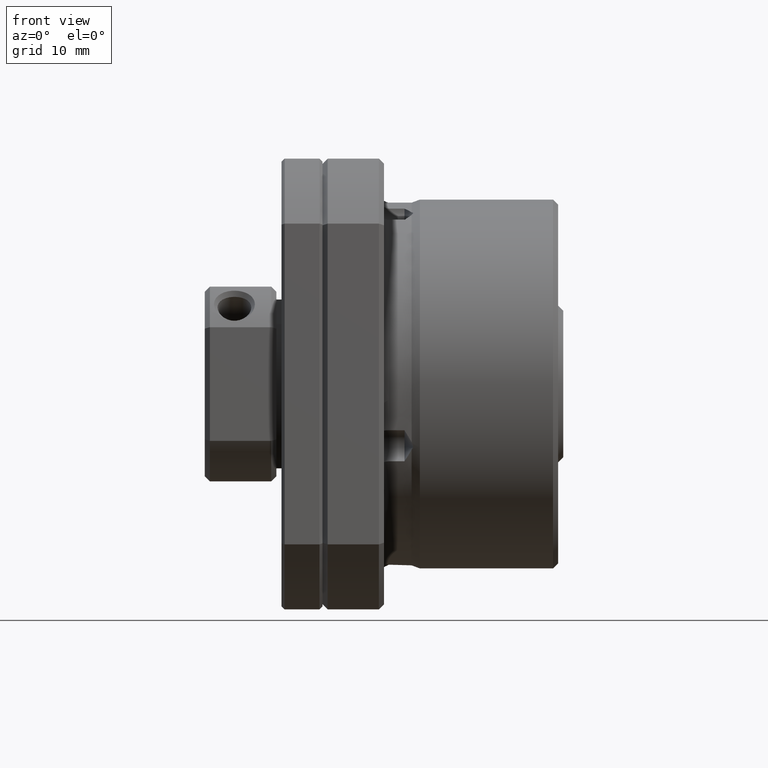
[diagram: clean part render]
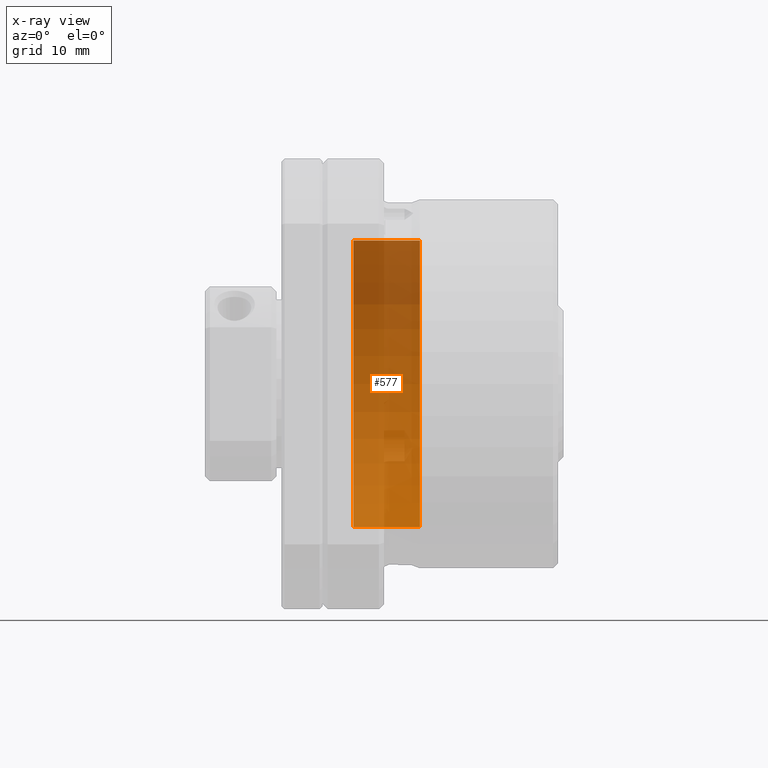
[diagram: x-ray — body ghosted, one internal face saturated and labeled with its STEP entity id]
A machine part, front view, then the same camera in x-ray: the body is ghosted and one INTERNAL B-rep face — a face not visible from any outside direction — is saturated and labeled: STEP entity #577.
In plain terms, the highlighted cylindrical surface (partial cylindrical patch) has radius 14 mm, axis along (-1, 0, 0).
Its self-contained STEP definition (entity closure, byte-faithful):
#107 = VERTEX_POINT ( 'NONE', #13830 ) ;
#132 = VERTEX_POINT ( 'NONE', #13837 ) ;
#156 = EDGE_CURVE ( 'NONE', #107, #165, #13903, .T. ) ;
#157 = ORIENTED_EDGE ( 'NONE', *, *, #156, .F. ) ;
#158 = ORIENTED_EDGE ( 'NONE', *, *, #162, .F. ) ;
#160 = EDGE_CURVE ( 'NONE', #132, #170, #13898, .T. ) ;
#162 = EDGE_CURVE ( 'NONE', #165, #170, #13954, .T. ) ;
#165 = VERTEX_POINT ( 'NONE', #13948 ) ;
#170 = VERTEX_POINT ( 'NONE', #13937 ) ;
#172 = ORIENTED_EDGE ( 'NONE', *, *, #160, .T. ) ;
#577 = ADVANCED_FACE ( 'NONE', ( #14780 ), #14779, .T. ) ;
#578 = EDGE_LOOP ( 'NONE', ( #580, #172, #158, #157 ) ) ;
#579 = EDGE_CURVE ( 'NONE', #107, #132, #14771, .T. ) ;
#580 = ORIENTED_EDGE ( 'NONE', *, *, #579, .T. ) ;
#13830 = CARTESIAN_POINT ( 'NONE',  ( 9.499999999999994700, 3.108624468950437900E-015, 14.00000000000000200 ) ) ;
#13837 = CARTESIAN_POINT ( 'NONE',  ( 9.499999999999994700, -1.394175573599110000E-015, -14.00000000000000200 ) ) ;
#13895 = DIRECTION ( 'NONE',  ( -1.000000000000000000, 0.0000000000000000000, 0.0000000000000000000 ) ) ;
#13896 = VECTOR ( 'NONE', #13895, 1000.000000000000000 ) ;
#13897 = CARTESIAN_POINT ( 'NONE',  ( -62.36252019386108700, -1.394175573599109600E-015, -14.00000000000000200 ) ) ;
#13898 = LINE ( 'NONE', #13897, #13896 ) ;
#13900 = DIRECTION ( 'NONE',  ( -1.000000000000000000, 0.0000000000000000000, 0.0000000000000000000 ) ) ;
#13901 = VECTOR ( 'NONE', #13900, 1000.000000000000000 ) ;
#13902 = CARTESIAN_POINT ( 'NONE',  ( -62.36252019386108700, 3.108624468950437900E-015, 14.00000000000000200 ) ) ;
#13903 = LINE ( 'NONE', #13902, #13901 ) ;
#13937 = CARTESIAN_POINT ( 'NONE',  ( 2.999999999999988900, -1.394175573599109600E-015, -14.00000000000000200 ) ) ;
#13948 = CARTESIAN_POINT ( 'NONE',  ( 2.999999999999988900, 3.108624468950437900E-015, 14.00000000000000200 ) ) ;
#13950 = DIRECTION ( 'NONE',  ( 0.0000000000000000000, 2.220446049250312600E-016, 1.000000000000000000 ) ) ;
#13951 = DIRECTION ( 'NONE',  ( -1.000000000000000000, 0.0000000000000000000, 0.0000000000000000000 ) ) ;
#13952 = CARTESIAN_POINT ( 'NONE',  ( 2.999999999999988900, 0.0000000000000000000, 0.0000000000000000000 ) ) ;
#13953 = AXIS2_PLACEMENT_3D ( 'NONE', #13952, #13951, #13950 ) ;
#13954 = CIRCLE ( 'NONE', #13953, 14.00000000000000200 ) ;
#14764 = DIRECTION ( 'NONE',  ( 0.0000000000000000000, 2.220446049250312600E-016, 1.000000000000000000 ) ) ;
#14765 = DIRECTION ( 'NONE',  ( -1.000000000000000000, 0.0000000000000000000, 0.0000000000000000000 ) ) ;
#14766 = CARTESIAN_POINT ( 'NONE',  ( 9.499999999999994700, 0.0000000000000000000, 0.0000000000000000000 ) ) ;
#14767 = AXIS2_PLACEMENT_3D ( 'NONE', #14766, #14765, #14764 ) ;
#14768 = DIRECTION ( 'NONE',  ( 0.0000000000000000000, 2.220446049250312600E-016, 1.000000000000000000 ) ) ;
#14769 = DIRECTION ( 'NONE',  ( -1.000000000000000000, 0.0000000000000000000, 0.0000000000000000000 ) ) ;
#14770 = CARTESIAN_POINT ( 'NONE',  ( -62.36252019386108700, 0.0000000000000000000, 0.0000000000000000000 ) ) ;
#14771 = CIRCLE ( 'NONE', #14767, 14.00000000000000400 ) ;
#14772 = AXIS2_PLACEMENT_3D ( 'NONE', #14770, #14769, #14768 ) ;
#14779 = CYLINDRICAL_SURFACE ( 'NONE', #14772, 14.00000000000000200 ) ;
#14780 = FACE_OUTER_BOUND ( 'NONE', #578, .T. ) ;